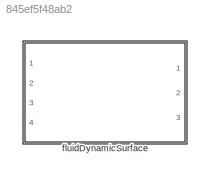
MODEL slx_845ef5f48ab2
KIND library
CONFIG AbsTol = auto
CONFIG EnableMultiTasking = off
CONFIG FixedStep = auto
CONFIG MaxStep = auto
CONFIG MinStep = auto
CONFIG RelTol = 1e-3
CONFIG SampleTimeConstraint = Unconstrained
CONFIG SolverName = VariableStepAuto
CONFIG StartTime = 0.0
CONFIG StopTime = 10.0
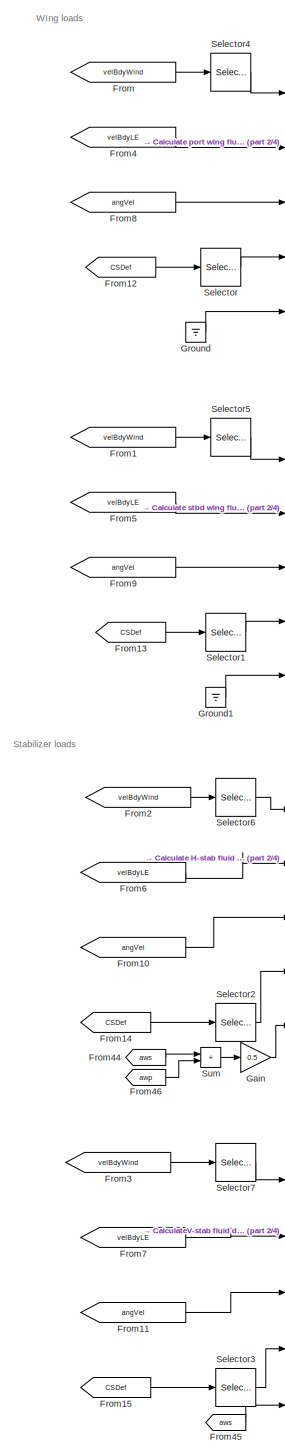
[diagram: fluidDynamicSurface - part 1/4, left side, full height]
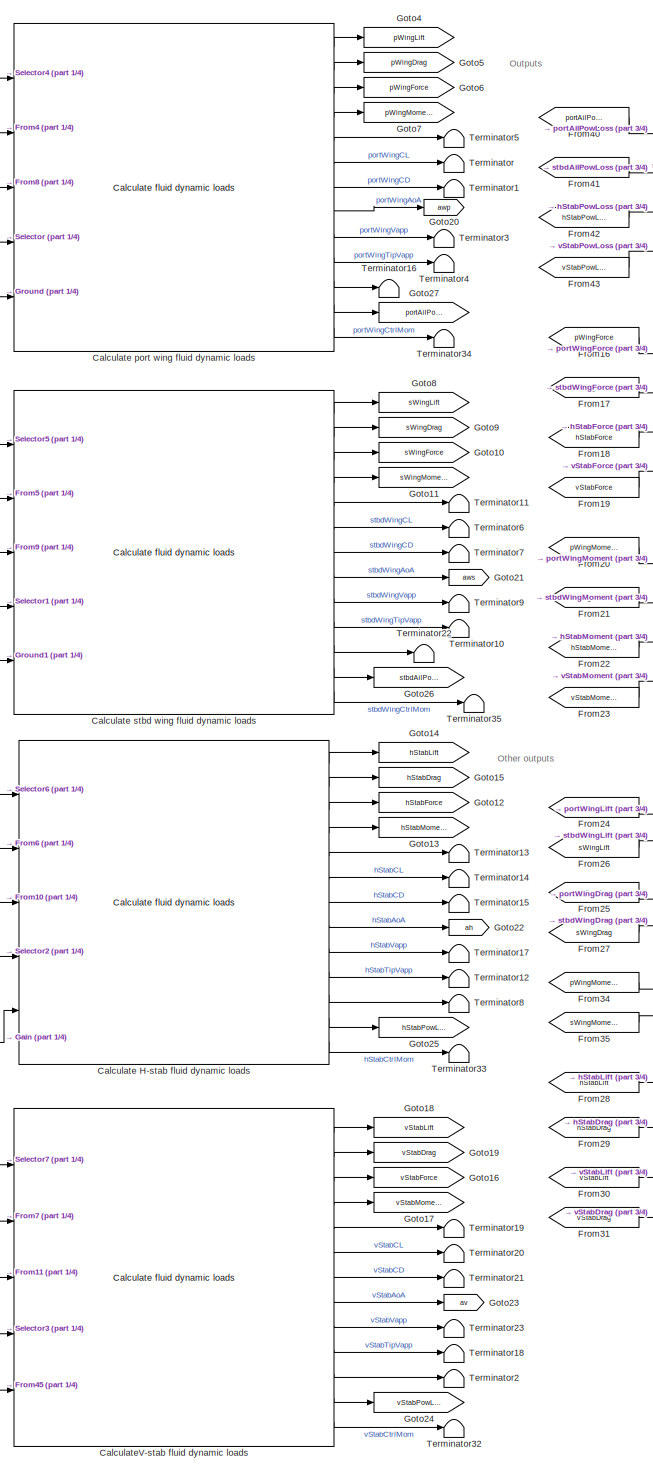
[diagram: fluidDynamicSurface - part 2/4, center side, full height]
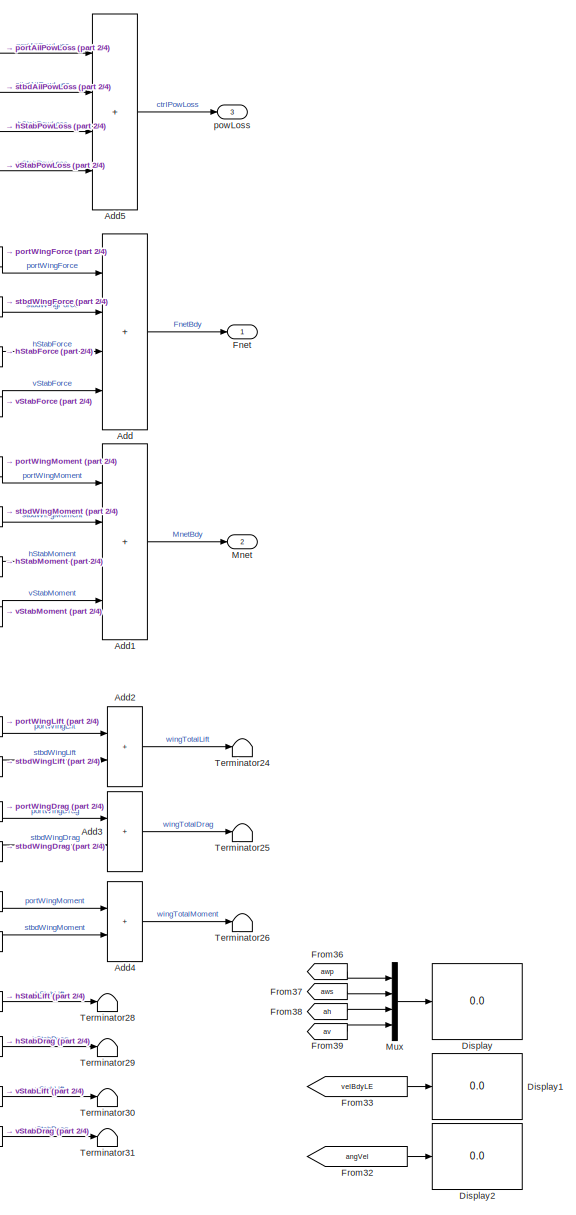
[diagram: fluidDynamicSurface - part 3/4, right side, full height]
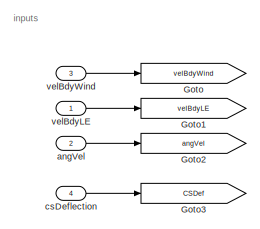
[diagram: fluidDynamicSurface - part 4/4, middle left region]
BLOCK [SubSystem] fluidDynamicSurface
  MinAlgLoopOccurrences = on
  Ports = [4, 3]
  RequestExecContextInheritance = off
BLOCK [Sum] fluidDynamicSurface/Add
  IconShape = rectangular
  Inputs = ++++
  Ports = [4, 1]
BLOCK [Sum] fluidDynamicSurface/Add1
  IconShape = rectangular
  Inputs = ++++
  Ports = [4, 1]
BLOCK [Sum] fluidDynamicSurface/Add2
  IconShape = rectangular
  Ports = [2, 1]
BLOCK [Sum] fluidDynamicSurface/Add3
  IconShape = rectangular
  Ports = [2, 1]
BLOCK [Sum] fluidDynamicSurface/Add4
  IconShape = rectangular
  Ports = [2, 1]
BLOCK [Sum] fluidDynamicSurface/Add5
  IconShape = rectangular
  Inputs = ++++
  Ports = [4, 1]
BLOCK [Reference] fluidDynamicSurface/Calculate H-stab fluid dynamic loads  REF=calcFluidDynamicLoads/Calculate fluid dynamic loads
  Ports = [5, 13]
  SourceBlock = calcFluidDynamicLoads/Calculate fluid dynamic loads
BLOCK [Reference] fluidDynamicSurface/Calculate port wing fluid dynamic loads  REF=calcFluidDynamicLoads/Calculate fluid dynamic loads
  Ports = [5, 13]
  SourceBlock = calcFluidDynamicLoads/Calculate fluid dynamic loads
BLOCK [Reference] fluidDynamicSurface/Calculate stbd wing fluid dynamic loads  REF=calcFluidDynamicLoads/Calculate fluid dynamic loads
  Ports = [5, 13]
  SourceBlock = calcFluidDynamicLoads/Calculate fluid dynamic loads
BLOCK [Reference] fluidDynamicSurface/CalculateV-stab fluid dynamic loads  REF=calcFluidDynamicLoads/Calculate fluid dynamic loads
  Ports = [5, 13]
  SourceBlock = calcFluidDynamicLoads/Calculate fluid dynamic loads
BLOCK [Display] fluidDynamicSurface/Display
  Decimation = 1
  Ports = [1]
BLOCK [Display] fluidDynamicSurface/Display1
  Decimation = 1
  Ports = [1]
BLOCK [Display] fluidDynamicSurface/Display2
  Decimation = 1
  Ports = [1]
BLOCK [Outport] fluidDynamicSurface/Fnet
BLOCK [From] fluidDynamicSurface/From
  GotoTag = velBdyWind
BLOCK [From] fluidDynamicSurface/From1
  GotoTag = velBdyWind
BLOCK [From] fluidDynamicSurface/From10
  GotoTag = angVel
BLOCK [From] fluidDynamicSurface/From11
  GotoTag = angVel
BLOCK [From] fluidDynamicSurface/From12
  GotoTag = CSDef
BLOCK [From] fluidDynamicSurface/From13
  GotoTag = CSDef
BLOCK [From] fluidDynamicSurface/From14
  GotoTag = CSDef
BLOCK [From] fluidDynamicSurface/From15
  GotoTag = CSDef
BLOCK [From] fluidDynamicSurface/From16
  GotoTag = pWingForce
BLOCK [From] fluidDynamicSurface/From17
  GotoTag = sWingForce
BLOCK [From] fluidDynamicSurface/From18
  GotoTag = hStabForce
BLOCK [From] fluidDynamicSurface/From19
  GotoTag = vStabForce
BLOCK [From] fluidDynamicSurface/From2
  GotoTag = velBdyWind
BLOCK [From] fluidDynamicSurface/From20
  GotoTag = pWingMoment
BLOCK [From] fluidDynamicSurface/From21
  GotoTag = sWingMoment
BLOCK [From] fluidDynamicSurface/From22
  GotoTag = hStabMoment
BLOCK [From] fluidDynamicSurface/From23
  GotoTag = vStabMoment
BLOCK [From] fluidDynamicSurface/From24
  GotoTag = pWingLift
BLOCK [From] fluidDynamicSurface/From25
  GotoTag = pWingDrag
BLOCK [From] fluidDynamicSurface/From26
  GotoTag = sWingLift
BLOCK [From] fluidDynamicSurface/From27
  GotoTag = sWingDrag
BLOCK [From] fluidDynamicSurface/From28
  GotoTag = hStabLift
BLOCK [From] fluidDynamicSurface/From29
  GotoTag = hStabDrag
BLOCK [From] fluidDynamicSurface/From3
  GotoTag = velBdyWind
BLOCK [From] fluidDynamicSurface/From30
  GotoTag = vStabLift
BLOCK [From] fluidDynamicSurface/From31
  GotoTag = vStabDrag
BLOCK [From] fluidDynamicSurface/From32
  GotoTag = angVel
BLOCK [From] fluidDynamicSurface/From33
  GotoTag = velBdyLE
BLOCK [From] fluidDynamicSurface/From34
  GotoTag = pWingMoment
BLOCK [From] fluidDynamicSurface/From35
  GotoTag = sWingMoment
BLOCK [From] fluidDynamicSurface/From36
  GotoTag = awp
BLOCK [From] fluidDynamicSurface/From37
  GotoTag = aws
BLOCK [From] fluidDynamicSurface/From38
  GotoTag = ah
BLOCK [From] fluidDynamicSurface/From39
  GotoTag = av
BLOCK [From] fluidDynamicSurface/From4
  GotoTag = velBdyLE
BLOCK [From] fluidDynamicSurface/From40
  GotoTag = portAilPowLoss
BLOCK [From] fluidDynamicSurface/From41
  GotoTag = stbdAilPowLoss
BLOCK [From] fluidDynamicSurface/From42
  GotoTag = hStabPowLoss
BLOCK [From] fluidDynamicSurface/From43
  GotoTag = vStabPowLoss
BLOCK [From] fluidDynamicSurface/From44
  GotoTag = aws
BLOCK [From] fluidDynamicSurface/From45
  GotoTag = aws
BLOCK [From] fluidDynamicSurface/From46
  GotoTag = awp
BLOCK [From] fluidDynamicSurface/From5
  GotoTag = velBdyLE
BLOCK [From] fluidDynamicSurface/From6
  GotoTag = velBdyLE
BLOCK [From] fluidDynamicSurface/From7
  GotoTag = velBdyLE
BLOCK [From] fluidDynamicSurface/From8
  GotoTag = angVel
BLOCK [From] fluidDynamicSurface/From9
  GotoTag = angVel
BLOCK [Gain] fluidDynamicSurface/Gain
  Gain = 0.5
BLOCK [Goto] fluidDynamicSurface/Goto
  GotoTag = velBdyWind
BLOCK [Goto] fluidDynamicSurface/Goto1
  GotoTag = velBdyLE
BLOCK [Goto] fluidDynamicSurface/Goto10
  GotoTag = sWingForce
BLOCK [Goto] fluidDynamicSurface/Goto11
  GotoTag = sWingMoment
BLOCK [Goto] fluidDynamicSurface/Goto12
  GotoTag = hStabForce
BLOCK [Goto] fluidDynamicSurface/Goto13
  GotoTag = hStabMoment
BLOCK [Goto] fluidDynamicSurface/Goto14
  GotoTag = hStabLift
BLOCK [Goto] fluidDynamicSurface/Goto15
  GotoTag = hStabDrag
BLOCK [Goto] fluidDynamicSurface/Goto16
  GotoTag = vStabForce
BLOCK [Goto] fluidDynamicSurface/Goto17
  GotoTag = vStabMoment
BLOCK [Goto] fluidDynamicSurface/Goto18
  GotoTag = vStabLift
BLOCK [Goto] fluidDynamicSurface/Goto19
  GotoTag = vStabDrag
BLOCK [Goto] fluidDynamicSurface/Goto2
  GotoTag = angVel
BLOCK [Goto] fluidDynamicSurface/Goto20
  GotoTag = awp
BLOCK [Goto] fluidDynamicSurface/Goto21
  GotoTag = aws
BLOCK [Goto] fluidDynamicSurface/Goto22
  GotoTag = ah
BLOCK [Goto] fluidDynamicSurface/Goto23
  GotoTag = av
BLOCK [Goto] fluidDynamicSurface/Goto24
  GotoTag = vStabPowLoss
BLOCK [Goto] fluidDynamicSurface/Goto25
  GotoTag = hStabPowLoss
BLOCK [Goto] fluidDynamicSurface/Goto26
  GotoTag = stbdAilPowLoss
BLOCK [Goto] fluidDynamicSurface/Goto27
  GotoTag = portAilPowLoss
BLOCK [Goto] fluidDynamicSurface/Goto3
  GotoTag = CSDef
BLOCK [Goto] fluidDynamicSurface/Goto4
  GotoTag = pWingLift
BLOCK [Goto] fluidDynamicSurface/Goto5
  GotoTag = pWingDrag
BLOCK [Goto] fluidDynamicSurface/Goto6
  GotoTag = pWingForce
BLOCK [Goto] fluidDynamicSurface/Goto7
  GotoTag = pWingMoment
BLOCK [Goto] fluidDynamicSurface/Goto8
  GotoTag = sWingLift
BLOCK [Goto] fluidDynamicSurface/Goto9
  GotoTag = sWingDrag
BLOCK [Ground] fluidDynamicSurface/Ground
BLOCK [Ground] fluidDynamicSurface/Ground1
BLOCK [Outport] fluidDynamicSurface/Mnet
  Port = 2
BLOCK [Mux] fluidDynamicSurface/Mux
  DisplayOption = bar
  Ports = [4, 1]
BLOCK [Selector] fluidDynamicSurface/Selector
  IndexOptions = Index vector (dialog)
  Indices = 1
  InputPortWidth = 4
  OutputSizes = 1
  Ports = [1, 1]
BLOCK [Selector] fluidDynamicSurface/Selector1
  IndexOptions = Index vector (dialog)
  Indices = 2
  InputPortWidth = 4
  OutputSizes = 1
  Ports = [1, 1]
BLOCK [Selector] fluidDynamicSurface/Selector2
  IndexOptions = Index vector (dialog)
  Indices = 3
  InputPortWidth = 4
  OutputSizes = 1
  Ports = [1, 1]
BLOCK [Selector] fluidDynamicSurface/Selector3
  IndexOptions = Index vector (dialog)
  Indices = 4
  InputPortWidth = 4
  OutputSizes = 1
  Ports = [1, 1]
BLOCK [Selector] fluidDynamicSurface/Selector4
  IndexOptions = Select all,Index vector (dialog)
  Indices = 1,1
  InputPortWidth = 4
  NumberOfDimensions = 2
  OutputSizes = 1,1
  Ports = [1, 1]
BLOCK [Selector] fluidDynamicSurface/Selector5
  IndexOptions = Select all,Index vector (dialog)
  Indices = 1,2
  InputPortWidth = 4
  NumberOfDimensions = 2
  OutputSizes = 1,1
  Ports = [1, 1]
BLOCK [Selector] fluidDynamicSurface/Selector6
  IndexOptions = Select all,Index vector (dialog)
  Indices = 1,3
  InputPortWidth = 4
  NumberOfDimensions = 2
  OutputSizes = 1,1
  Ports = [1, 1]
BLOCK [Selector] fluidDynamicSurface/Selector7
  IndexOptions = Select all,Index vector (dialog)
  Indices = 1,4
  InputPortWidth = 4
  NumberOfDimensions = 2
  OutputSizes = 1,1
  Ports = [1, 1]
BLOCK [Sum] fluidDynamicSurface/Sum
  IconShape = rectangular
  Inputs = |++
  Ports = [2, 1]
BLOCK [Terminator] fluidDynamicSurface/Terminator
BLOCK [Terminator] fluidDynamicSurface/Terminator1
BLOCK [Terminator] fluidDynamicSurface/Terminator10
BLOCK [Terminator] fluidDynamicSurface/Terminator11
BLOCK [Terminator] fluidDynamicSurface/Terminator12
BLOCK [Terminator] fluidDynamicSurface/Terminator13
BLOCK [Terminator] fluidDynamicSurface/Terminator14
BLOCK [Terminator] fluidDynamicSurface/Terminator15
BLOCK [Terminator] fluidDynamicSurface/Terminator16
BLOCK [Terminator] fluidDynamicSurface/Terminator17
BLOCK [Terminator] fluidDynamicSurface/Terminator18
BLOCK [Terminator] fluidDynamicSurface/Terminator19
BLOCK [Terminator] fluidDynamicSurface/Terminator2
BLOCK [Terminator] fluidDynamicSurface/Terminator20
BLOCK [Terminator] fluidDynamicSurface/Terminator21
BLOCK [Terminator] fluidDynamicSurface/Terminator22
BLOCK [Terminator] fluidDynamicSurface/Terminator23
BLOCK [Terminator] fluidDynamicSurface/Terminator24
BLOCK [Terminator] fluidDynamicSurface/Terminator25
BLOCK [Terminator] fluidDynamicSurface/Terminator26
BLOCK [Terminator] fluidDynamicSurface/Terminator28
BLOCK [Terminator] fluidDynamicSurface/Terminator29
BLOCK [Terminator] fluidDynamicSurface/Terminator3
BLOCK [Terminator] fluidDynamicSurface/Terminator30
BLOCK [Terminator] fluidDynamicSurface/Terminator31
BLOCK [Terminator] fluidDynamicSurface/Terminator32
BLOCK [Terminator] fluidDynamicSurface/Terminator33
BLOCK [Terminator] fluidDynamicSurface/Terminator34
BLOCK [Terminator] fluidDynamicSurface/Terminator35
BLOCK [Terminator] fluidDynamicSurface/Terminator4
BLOCK [Terminator] fluidDynamicSurface/Terminator5
BLOCK [Terminator] fluidDynamicSurface/Terminator6
BLOCK [Terminator] fluidDynamicSurface/Terminator7
BLOCK [Terminator] fluidDynamicSurface/Terminator8
BLOCK [Terminator] fluidDynamicSurface/Terminator9
BLOCK [Inport] fluidDynamicSurface/angVel
  Port = 2
BLOCK [Inport] fluidDynamicSurface/csDeflection
  Port = 4
BLOCK [Outport] fluidDynamicSurface/powLoss
  Port = 3
BLOCK [Inport] fluidDynamicSurface/velBdyLE
BLOCK [Inport] fluidDynamicSurface/velBdyWind
  Port = 3
ANNOTATION fluidDynamicSurface: Other outputs
ANNOTATION fluidDynamicSurface: Outputs
ANNOTATION fluidDynamicSurface: Stabilizer loads
ANNOTATION fluidDynamicSurface: WIng loads
ANNOTATION fluidDynamicSurface: inputs
LINE fluidDynamicSurface/Add1:1 -> fluidDynamicSurface/Mnet:1
LINE fluidDynamicSurface/Add2:1 -> fluidDynamicSurface/Terminator24:1
LINE fluidDynamicSurface/Add3:1 -> fluidDynamicSurface/Terminator25:1
LINE fluidDynamicSurface/Add4:1 -> fluidDynamicSurface/Terminator26:1
LINE fluidDynamicSurface/Add5:1 -> fluidDynamicSurface/powLoss:1
LINE fluidDynamicSurface/Add:1 -> fluidDynamicSurface/Fnet:1
LINE fluidDynamicSurface/Calculate H-stab fluid dynamic loads:1 -> fluidDynamicSurface/Goto14:1
LINE fluidDynamicSurface/Calculate H-stab fluid dynamic loads:10 -> fluidDynamicSurface/Terminator12:1
LINE fluidDynamicSurface/Calculate H-stab fluid dynamic loads:11 -> fluidDynamicSurface/Terminator8:1
LINE fluidDynamicSurface/Calculate H-stab fluid dynamic loads:12 -> fluidDynamicSurface/Goto25:1
LINE fluidDynamicSurface/Calculate H-stab fluid dynamic loads:13 -> fluidDynamicSurface/Terminator33:1
LINE fluidDynamicSurface/Calculate H-stab fluid dynamic loads:2 -> fluidDynamicSurface/Goto15:1
LINE fluidDynamicSurface/Calculate H-stab fluid dynamic loads:3 -> fluidDynamicSurface/Goto12:1
LINE fluidDynamicSurface/Calculate H-stab fluid dynamic loads:4 -> fluidDynamicSurface/Goto13:1
LINE fluidDynamicSurface/Calculate H-stab fluid dynamic loads:5 -> fluidDynamicSurface/Terminator13:1
LINE fluidDynamicSurface/Calculate H-stab fluid dynamic loads:6 -> fluidDynamicSurface/Terminator14:1
LINE fluidDynamicSurface/Calculate H-stab fluid dynamic loads:7 -> fluidDynamicSurface/Terminator15:1
LINE fluidDynamicSurface/Calculate H-stab fluid dynamic loads:8 -> fluidDynamicSurface/Goto22:1
LINE fluidDynamicSurface/Calculate H-stab fluid dynamic loads:9 -> fluidDynamicSurface/Terminator17:1
LINE fluidDynamicSurface/Calculate port wing fluid dynamic loads:1 -> fluidDynamicSurface/Goto4:1
LINE fluidDynamicSurface/Calculate port wing fluid dynamic loads:10 -> fluidDynamicSurface/Terminator4:1
LINE fluidDynamicSurface/Calculate port wing fluid dynamic loads:11 -> fluidDynamicSurface/Terminator16:1
LINE fluidDynamicSurface/Calculate port wing fluid dynamic loads:12 -> fluidDynamicSurface/Goto27:1
LINE fluidDynamicSurface/Calculate port wing fluid dynamic loads:13 -> fluidDynamicSurface/Terminator34:1
LINE fluidDynamicSurface/Calculate port wing fluid dynamic loads:2 -> fluidDynamicSurface/Goto5:1
LINE fluidDynamicSurface/Calculate port wing fluid dynamic loads:3 -> fluidDynamicSurface/Goto6:1
LINE fluidDynamicSurface/Calculate port wing fluid dynamic loads:4 -> fluidDynamicSurface/Goto7:1
LINE fluidDynamicSurface/Calculate port wing fluid dynamic loads:5 -> fluidDynamicSurface/Terminator5:1
LINE fluidDynamicSurface/Calculate port wing fluid dynamic loads:6 -> fluidDynamicSurface/Terminator:1
LINE fluidDynamicSurface/Calculate port wing fluid dynamic loads:7 -> fluidDynamicSurface/Terminator1:1
LINE fluidDynamicSurface/Calculate port wing fluid dynamic loads:8 -> fluidDynamicSurface/Goto20:1
LINE fluidDynamicSurface/Calculate port wing fluid dynamic loads:9 -> fluidDynamicSurface/Terminator3:1
LINE fluidDynamicSurface/Calculate stbd wing fluid dynamic loads:1 -> fluidDynamicSurface/Goto8:1
LINE fluidDynamicSurface/Calculate stbd wing fluid dynamic loads:10 -> fluidDynamicSurface/Terminator10:1
LINE fluidDynamicSurface/Calculate stbd wing fluid dynamic loads:11 -> fluidDynamicSurface/Terminator22:1
LINE fluidDynamicSurface/Calculate stbd wing fluid dynamic loads:12 -> fluidDynamicSurface/Goto26:1
LINE fluidDynamicSurface/Calculate stbd wing fluid dynamic loads:13 -> fluidDynamicSurface/Terminator35:1
LINE fluidDynamicSurface/Calculate stbd wing fluid dynamic loads:2 -> fluidDynamicSurface/Goto9:1
LINE fluidDynamicSurface/Calculate stbd wing fluid dynamic loads:3 -> fluidDynamicSurface/Goto10:1
LINE fluidDynamicSurface/Calculate stbd wing fluid dynamic loads:4 -> fluidDynamicSurface/Goto11:1
LINE fluidDynamicSurface/Calculate stbd wing fluid dynamic loads:5 -> fluidDynamicSurface/Terminator11:1
LINE fluidDynamicSurface/Calculate stbd wing fluid dynamic loads:6 -> fluidDynamicSurface/Terminator6:1
LINE fluidDynamicSurface/Calculate stbd wing fluid dynamic loads:7 -> fluidDynamicSurface/Terminator7:1
LINE fluidDynamicSurface/Calculate stbd wing fluid dynamic loads:8 -> fluidDynamicSurface/Goto21:1
LINE fluidDynamicSurface/Calculate stbd wing fluid dynamic loads:9 -> fluidDynamicSurface/Terminator9:1
LINE fluidDynamicSurface/CalculateV-stab fluid dynamic loads:1 -> fluidDynamicSurface/Goto18:1
LINE fluidDynamicSurface/CalculateV-stab fluid dynamic loads:10 -> fluidDynamicSurface/Terminator18:1
LINE fluidDynamicSurface/CalculateV-stab fluid dynamic loads:11 -> fluidDynamicSurface/Terminator2:1
LINE fluidDynamicSurface/CalculateV-stab fluid dynamic loads:12 -> fluidDynamicSurface/Goto24:1
LINE fluidDynamicSurface/CalculateV-stab fluid dynamic loads:13 -> fluidDynamicSurface/Terminator32:1
LINE fluidDynamicSurface/CalculateV-stab fluid dynamic loads:2 -> fluidDynamicSurface/Goto19:1
LINE fluidDynamicSurface/CalculateV-stab fluid dynamic loads:3 -> fluidDynamicSurface/Goto16:1
LINE fluidDynamicSurface/CalculateV-stab fluid dynamic loads:4 -> fluidDynamicSurface/Goto17:1
LINE fluidDynamicSurface/CalculateV-stab fluid dynamic loads:5 -> fluidDynamicSurface/Terminator19:1
LINE fluidDynamicSurface/CalculateV-stab fluid dynamic loads:6 -> fluidDynamicSurface/Terminator20:1
LINE fluidDynamicSurface/CalculateV-stab fluid dynamic loads:7 -> fluidDynamicSurface/Terminator21:1
LINE fluidDynamicSurface/CalculateV-stab fluid dynamic loads:8 -> fluidDynamicSurface/Goto23:1
LINE fluidDynamicSurface/CalculateV-stab fluid dynamic loads:9 -> fluidDynamicSurface/Terminator23:1
LINE fluidDynamicSurface/From10:1 -> fluidDynamicSurface/Calculate H-stab fluid dynamic loads:3
LINE fluidDynamicSurface/From11:1 -> fluidDynamicSurface/CalculateV-stab fluid dynamic loads:3
LINE fluidDynamicSurface/From12:1 -> fluidDynamicSurface/Selector:1
LINE fluidDynamicSurface/From13:1 -> fluidDynamicSurface/Selector1:1
LINE fluidDynamicSurface/From14:1 -> fluidDynamicSurface/Selector2:1
LINE fluidDynamicSurface/From15:1 -> fluidDynamicSurface/Selector3:1
LINE fluidDynamicSurface/From16:1 -> fluidDynamicSurface/Add:1
LINE fluidDynamicSurface/From17:1 -> fluidDynamicSurface/Add:2
LINE fluidDynamicSurface/From18:1 -> fluidDynamicSurface/Add:3
LINE fluidDynamicSurface/From19:1 -> fluidDynamicSurface/Add:4
LINE fluidDynamicSurface/From1:1 -> fluidDynamicSurface/Selector5:1
LINE fluidDynamicSurface/From20:1 -> fluidDynamicSurface/Add1:1
LINE fluidDynamicSurface/From21:1 -> fluidDynamicSurface/Add1:2
LINE fluidDynamicSurface/From22:1 -> fluidDynamicSurface/Add1:3
LINE fluidDynamicSurface/From23:1 -> fluidDynamicSurface/Add1:4
LINE fluidDynamicSurface/From24:1 -> fluidDynamicSurface/Add2:1
LINE fluidDynamicSurface/From25:1 -> fluidDynamicSurface/Add3:1
LINE fluidDynamicSurface/From26:1 -> fluidDynamicSurface/Add2:2
LINE fluidDynamicSurface/From27:1 -> fluidDynamicSurface/Add3:2
LINE fluidDynamicSurface/From28:1 -> fluidDynamicSurface/Terminator28:1
LINE fluidDynamicSurface/From29:1 -> fluidDynamicSurface/Terminator29:1
LINE fluidDynamicSurface/From2:1 -> fluidDynamicSurface/Selector6:1
LINE fluidDynamicSurface/From30:1 -> fluidDynamicSurface/Terminator30:1
LINE fluidDynamicSurface/From31:1 -> fluidDynamicSurface/Terminator31:1
LINE fluidDynamicSurface/From32:1 -> fluidDynamicSurface/Display2:1
LINE fluidDynamicSurface/From33:1 -> fluidDynamicSurface/Display1:1
LINE fluidDynamicSurface/From34:1 -> fluidDynamicSurface/Add4:1
LINE fluidDynamicSurface/From35:1 -> fluidDynamicSurface/Add4:2
LINE fluidDynamicSurface/From36:1 -> fluidDynamicSurface/Mux:1
LINE fluidDynamicSurface/From37:1 -> fluidDynamicSurface/Mux:2
LINE fluidDynamicSurface/From38:1 -> fluidDynamicSurface/Mux:3
LINE fluidDynamicSurface/From39:1 -> fluidDynamicSurface/Mux:4
LINE fluidDynamicSurface/From3:1 -> fluidDynamicSurface/Selector7:1
LINE fluidDynamicSurface/From40:1 -> fluidDynamicSurface/Add5:1
LINE fluidDynamicSurface/From41:1 -> fluidDynamicSurface/Add5:2
LINE fluidDynamicSurface/From42:1 -> fluidDynamicSurface/Add5:3
LINE fluidDynamicSurface/From43:1 -> fluidDynamicSurface/Add5:4
LINE fluidDynamicSurface/From44:1 -> fluidDynamicSurface/Sum:1
LINE fluidDynamicSurface/From45:1 -> fluidDynamicSurface/CalculateV-stab fluid dynamic loads:5
LINE fluidDynamicSurface/From46:1 -> fluidDynamicSurface/Sum:2
LINE fluidDynamicSurface/From4:1 -> fluidDynamicSurface/Calculate port wing fluid dynamic loads:2
LINE fluidDynamicSurface/From5:1 -> fluidDynamicSurface/Calculate stbd wing fluid dynamic loads:2
LINE fluidDynamicSurface/From6:1 -> fluidDynamicSurface/Calculate H-stab fluid dynamic loads:2
LINE fluidDynamicSurface/From7:1 -> fluidDynamicSurface/CalculateV-stab fluid dynamic loads:2
LINE fluidDynamicSurface/From8:1 -> fluidDynamicSurface/Calculate port wing fluid dynamic loads:3
LINE fluidDynamicSurface/From9:1 -> fluidDynamicSurface/Calculate stbd wing fluid dynamic loads:3
LINE fluidDynamicSurface/From:1 -> fluidDynamicSurface/Selector4:1
LINE fluidDynamicSurface/Gain:1 -> fluidDynamicSurface/Calculate H-stab fluid dynamic loads:5
LINE fluidDynamicSurface/Ground1:1 -> fluidDynamicSurface/Calculate stbd wing fluid dynamic loads:5
LINE fluidDynamicSurface/Ground:1 -> fluidDynamicSurface/Calculate port wing fluid dynamic loads:5
LINE fluidDynamicSurface/Mux:1 -> fluidDynamicSurface/Display:1
LINE fluidDynamicSurface/Selector1:1 -> fluidDynamicSurface/Calculate stbd wing fluid dynamic loads:4
LINE fluidDynamicSurface/Selector2:1 -> fluidDynamicSurface/Calculate H-stab fluid dynamic loads:4
LINE fluidDynamicSurface/Selector3:1 -> fluidDynamicSurface/CalculateV-stab fluid dynamic loads:4
LINE fluidDynamicSurface/Selector4:1 -> fluidDynamicSurface/Calculate port wing fluid dynamic loads:1
LINE fluidDynamicSurface/Selector5:1 -> fluidDynamicSurface/Calculate stbd wing fluid dynamic loads:1
LINE fluidDynamicSurface/Selector6:1 -> fluidDynamicSurface/Calculate H-stab fluid dynamic loads:1
LINE fluidDynamicSurface/Selector7:1 -> fluidDynamicSurface/CalculateV-stab fluid dynamic loads:1
LINE fluidDynamicSurface/Selector:1 -> fluidDynamicSurface/Calculate port wing fluid dynamic loads:4
LINE fluidDynamicSurface/Sum:1 -> fluidDynamicSurface/Gain:1
LINE fluidDynamicSurface/angVel:1 -> fluidDynamicSurface/Goto2:1
LINE fluidDynamicSurface/csDeflection:1 -> fluidDynamicSurface/Goto3:1
LINE fluidDynamicSurface/velBdyLE:1 -> fluidDynamicSurface/Goto1:1
LINE fluidDynamicSurface/velBdyWind:1 -> fluidDynamicSurface/Goto:1
